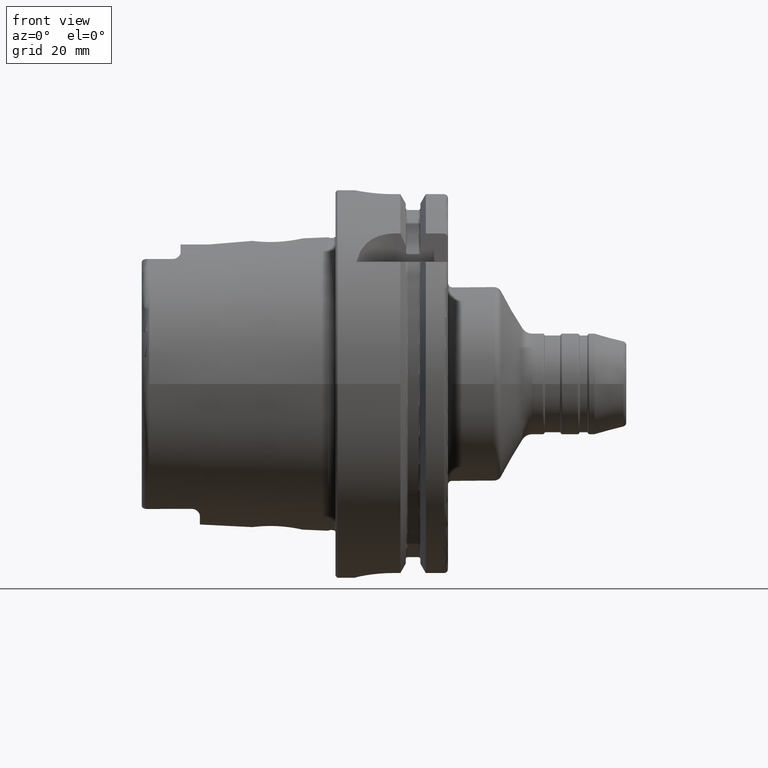
[diagram: clean part render]
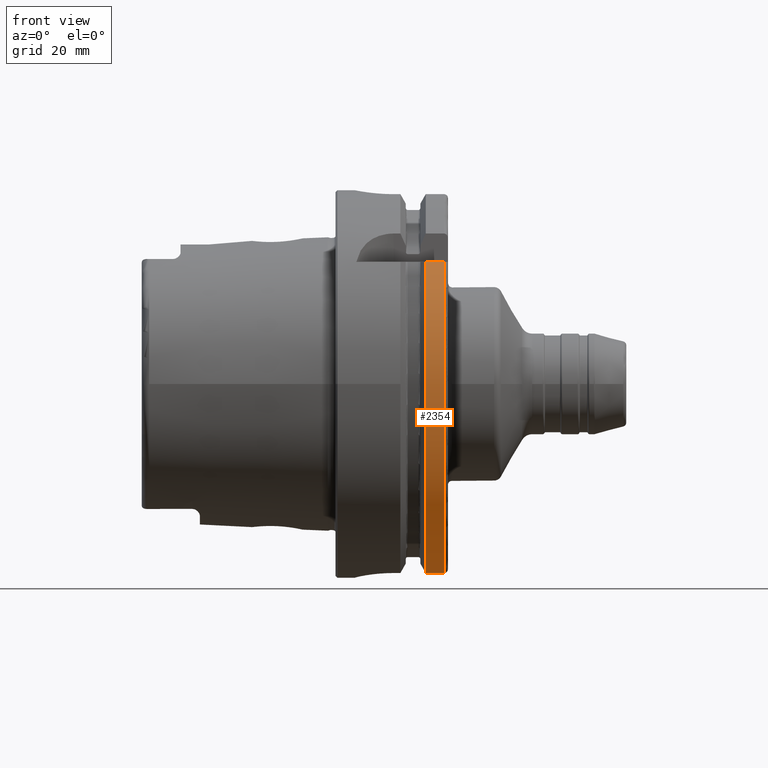
[diagram: same view with one face highlighted and labeled with its STEP entity id]
A machine part, front view. The second image highlights one B-rep face of the part: STEP entity #2354.
In plain terms, the highlighted cylindrical surface (partial cylindrical patch) has radius 50 mm, axis along (1, 0, 0).
Its self-contained STEP definition (entity closure, byte-faithful):
#227=LINE('',#4629,#339);
#243=LINE('',#4832,#355);
#339=VECTOR('',#3160,10.);
#355=VECTOR('',#3228,10.);
#412=CYLINDRICAL_SURFACE('',#2641,50.);
#505=FACE_OUTER_BOUND('',#649,.T.);
#649=EDGE_LOOP('',(#1965,#1966,#1967,#1968));
#831=CIRCLE('',#2638,50.);
#833=CIRCLE('',#2642,50.);
#1052=VERTEX_POINT('',#4624);
#1053=VERTEX_POINT('',#4628);
#1083=VERTEX_POINT('',#4820);
#1084=VERTEX_POINT('',#4831);
#1348=EDGE_CURVE('',#1053,#1052,#227,.T.);
#1393=EDGE_CURVE('',#1084,#1083,#243,.T.);
#1410=EDGE_CURVE('',#1053,#1083,#831,.T.);
#1413=EDGE_CURVE('',#1052,#1084,#833,.T.);
#1965=ORIENTED_EDGE('',*,*,#1348,.T.);
#1966=ORIENTED_EDGE('',*,*,#1413,.T.);
#1967=ORIENTED_EDGE('',*,*,#1393,.T.);
#1968=ORIENTED_EDGE('',*,*,#1410,.F.);
#2354=ADVANCED_FACE('',(#505),#412,.T.);
#2638=AXIS2_PLACEMENT_3D('',#4896,#3255,#3256);
#2641=AXIS2_PLACEMENT_3D('',#4901,#3262,#3263);
#2642=AXIS2_PLACEMENT_3D('',#4902,#3264,#3265);
#3160=DIRECTION('',(-1.,0.,0.));
#3228=DIRECTION('',(1.,0.,0.));
#3255=DIRECTION('center_axis',(1.,0.,0.));
#3256=DIRECTION('ref_axis',(0.,0.,-1.));
#3262=DIRECTION('center_axis',(1.,0.,0.));
#3263=DIRECTION('ref_axis',(0.,-0.94483222014474,-0.327554691275153));
#3264=DIRECTION('center_axis',(1.,0.,0.));
#3265=DIRECTION('ref_axis',(0.,0.,-1.));
#4624=CARTESIAN_POINT('',(23.2620290209214,-38.8297566307078,31.5));
#4628=CARTESIAN_POINT('',(28.,-38.8297566307078,31.5));
#4629=CARTESIAN_POINT('',(25.6310145104607,-38.8297566307078,31.5));
#4820=CARTESIAN_POINT('',(28.,-11.,-48.7749935930288));
#4831=CARTESIAN_POINT('',(23.2620290209214,-11.,-48.7749935930288));
#4832=CARTESIAN_POINT('',(25.6310145104607,-11.,-48.7749935930288));
#4896=CARTESIAN_POINT('Origin',(28.,0.,0.));
#4901=CARTESIAN_POINT('Origin',(25.6310145104607,0.,0.));
#4902=CARTESIAN_POINT('Origin',(23.2620290209214,0.,0.));